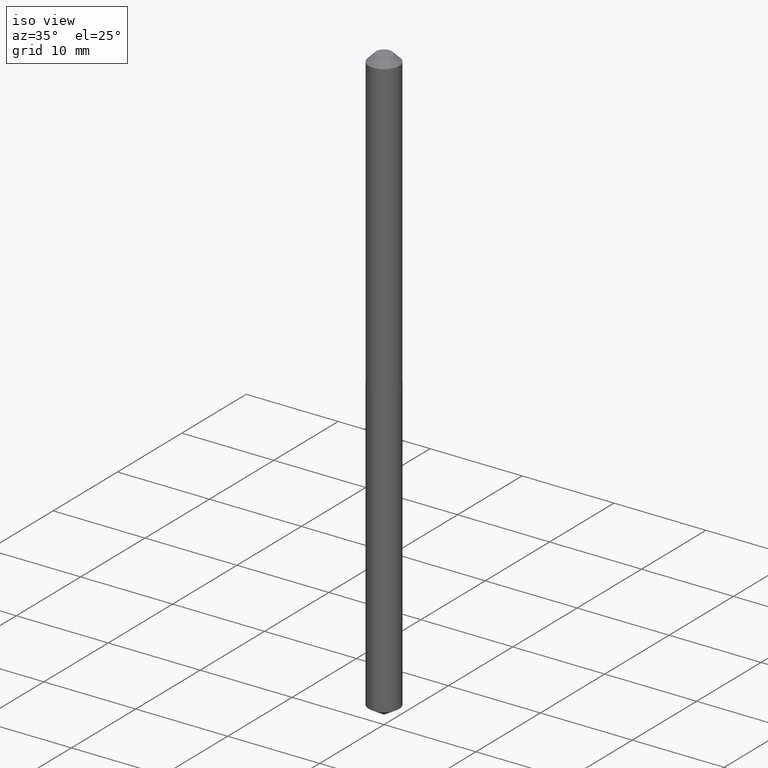
[diagram: clean part render]
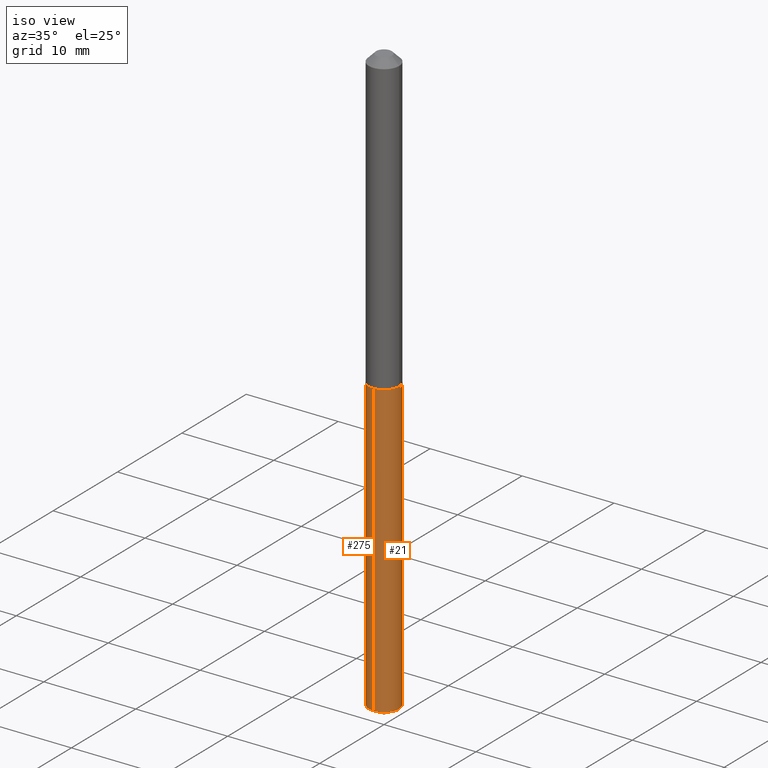
[diagram: same view with one multi-face feature highlighted, each face labeled with its STEP entity id]
A machine part, iso view. The highlighted faces form ONE feature: a constant-radius fillet chain: 2 tangent blend faces with common blend radius 1.6497 mm. The faces share edges in the B-rep.
Their STEP definitions:
[1] entity #275 (Cylinder):
#9 = DIRECTION ( 'NONE',  ( -6.982962677686266711E-15, -1.000000000000000000, 0.000000000000000000 ) ) ;
#10 = CIRCLE ( 'NONE', #352, 0.06494999999999999385 ) ;
#14 = CARTESIAN_POINT ( 'NONE',  ( 4.614975068762469526E-16, 0.06494999999999556684, -1.271700000000000275 ) ) ;
#22 = DIRECTION ( 'NONE',  ( -2.445570832791606508E-29, 3.491335230935686971E-15, 1.000000000000000000 ) ) ;
#29 = VERTEX_POINT ( 'NONE', #61 ) ;
#61 = CARTESIAN_POINT ( 'NONE',  ( -4.535434259156918360E-16, -0.06495000000000443474, -1.271699999999999608 ) ) ;
#71 = ORIENTED_EDGE ( 'NONE', *, *, #131, .T. ) ;
#72 = CARTESIAN_POINT ( 'NONE',  ( -4.535434259156613663E-16, -0.06495000000000882012, -2.520074102794160442 ) ) ;
#78 = VERTEX_POINT ( 'NONE', #146 ) ;
#89 = EDGE_CURVE ( 'NONE', #78, #166, #176, .T. ) ;
#124 = VERTEX_POINT ( 'NONE', #72 ) ;
#128 = DIRECTION ( 'NONE',  ( -2.445570832791606508E-29, 3.491335230935686971E-15, 1.000000000000000000 ) ) ;
#131 = EDGE_CURVE ( 'NONE', #78, #124, #308, .T. ) ;
#146 = CARTESIAN_POINT ( 'NONE',  ( 4.614975068762467554E-16, 0.06494999999999120921, -2.520074102794160442 ) ) ;
#164 = FACE_OUTER_BOUND ( 'NONE', #214, .T. ) ;
#165 = CYLINDRICAL_SURFACE ( 'NONE', #316, 0.06494999999999999385 ) ;
#166 = VERTEX_POINT ( 'NONE', #14 ) ;
#175 = AXIS2_PLACEMENT_3D ( 'NONE', #343, #128, #9 ) ;
#176 = LINE ( 'NONE', #183, #189 ) ;
#178 = DIRECTION ( 'NONE',  ( -2.445570832791606508E-29, 3.491335230935686576E-15, 1.000000000000000000 ) ) ;
#183 = CARTESIAN_POINT ( 'NONE',  ( 4.614975068762160884E-16, 0.06494999999999555296, -1.271700000000000275 ) ) ;
#185 = EDGE_CURVE ( 'NONE', #166, #29, #10, .T. ) ;
#189 = VECTOR ( 'NONE', #178, 39.37007874015748143 ) ;
#209 = EDGE_CURVE ( 'NONE', #124, #29, #314, .T. ) ;
#214 = EDGE_LOOP ( 'NONE', ( #384, #71, #325, #345 ) ) ;
#229 = DIRECTION ( 'NONE',  ( -6.982962677686266711E-15, -1.000000000000000000, 4.206078512185163024E-15 ) ) ;
#245 = DIRECTION ( 'NONE',  ( -6.982962677686266711E-15, -1.000000000000000000, 4.206078512185163024E-15 ) ) ;
#275 = ADVANCED_FACE ( 'NONE', ( #164 ), #165, .T. ) ;
#285 = CARTESIAN_POINT ( 'NONE',  ( 3.109902680825638129E-29, -4.440116818606828093E-15, -1.271700000000000053 ) ) ;
#307 = CARTESIAN_POINT ( 'NONE',  ( -4.535434259156918360E-16, -0.06495000000000443474, -1.271699999999999608 ) ) ;
#308 = CIRCLE ( 'NONE', #175, 0.06494999999999999385 ) ;
#314 = LINE ( 'NONE', #307, #386 ) ;
#316 = AXIS2_PLACEMENT_3D ( 'NONE', #285, #22, #229 ) ;
#325 = ORIENTED_EDGE ( 'NONE', *, *, #209, .T. ) ;
#340 = DIRECTION ( 'NONE',  ( -2.445570832791606508E-29, 3.491335230935686576E-15, 1.000000000000000000 ) ) ;
#343 = CARTESIAN_POINT ( 'NONE',  ( 6.162889975031427780E-29, -8.798609305079810371E-15, -2.520074102794160442 ) ) ;
#345 = ORIENTED_EDGE ( 'NONE', *, *, #185, .F. ) ;
#352 = AXIS2_PLACEMENT_3D ( 'NONE', #368, #370, #245 ) ;
#368 = CARTESIAN_POINT ( 'NONE',  ( 3.109902680825638129E-29, -4.440116818606828093E-15, -1.271700000000000053 ) ) ;
#370 = DIRECTION ( 'NONE',  ( -2.445570832791606508E-29, 3.491335230935686971E-15, 1.000000000000000000 ) ) ;
#384 = ORIENTED_EDGE ( 'NONE', *, *, #89, .F. ) ;
#386 = VECTOR ( 'NONE', #340, 39.37007874015748143 ) ;
[2] entity #21 (Cylinder):
#5 = AXIS2_PLACEMENT_3D ( 'NONE', #338, #66, #50 ) ;
#7 = CARTESIAN_POINT ( 'NONE',  ( 3.109902680825638129E-29, -4.440116818606828093E-15, -1.271700000000000053 ) ) ;
#8 = DIRECTION ( 'NONE',  ( -2.445570832791606508E-29, 3.491335230935686971E-15, 1.000000000000000000 ) ) ;
#14 = CARTESIAN_POINT ( 'NONE',  ( 4.614975068762469526E-16, 0.06494999999999556684, -1.271700000000000275 ) ) ;
#21 = ADVANCED_FACE ( 'NONE', ( #116 ), #152, .T. ) ;
#29 = VERTEX_POINT ( 'NONE', #61 ) ;
#32 = CARTESIAN_POINT ( 'NONE',  ( 3.109902680825638129E-29, -4.440116818606828093E-15, -1.271700000000000053 ) ) ;
#50 = DIRECTION ( 'NONE',  ( -6.982962677686266711E-15, -1.000000000000000000, 0.000000000000000000 ) ) ;
#61 = CARTESIAN_POINT ( 'NONE',  ( -4.535434259156918360E-16, -0.06495000000000443474, -1.271699999999999608 ) ) ;
#66 = DIRECTION ( 'NONE',  ( -2.445570832791606508E-29, 3.491335230935686971E-15, 1.000000000000000000 ) ) ;
#68 = AXIS2_PLACEMENT_3D ( 'NONE', #32, #360, #236 ) ;
#72 = CARTESIAN_POINT ( 'NONE',  ( -4.535434259156613663E-16, -0.06495000000000882012, -2.520074102794160442 ) ) ;
#78 = VERTEX_POINT ( 'NONE', #146 ) ;
#89 = EDGE_CURVE ( 'NONE', #78, #166, #176, .T. ) ;
#111 = CIRCLE ( 'NONE', #138, 0.06494999999999999385 ) ;
#115 = EDGE_CURVE ( 'NONE', #29, #166, #111, .T. ) ;
#116 = FACE_OUTER_BOUND ( 'NONE', #202, .T. ) ;
#124 = VERTEX_POINT ( 'NONE', #72 ) ;
#138 = AXIS2_PLACEMENT_3D ( 'NONE', #7, #8, #280 ) ;
#146 = CARTESIAN_POINT ( 'NONE',  ( 4.614975068762467554E-16, 0.06494999999999120921, -2.520074102794160442 ) ) ;
#152 = CYLINDRICAL_SURFACE ( 'NONE', #68, 0.06494999999999999385 ) ;
#166 = VERTEX_POINT ( 'NONE', #14 ) ;
#176 = LINE ( 'NONE', #183, #189 ) ;
#178 = DIRECTION ( 'NONE',  ( -2.445570832791606508E-29, 3.491335230935686576E-15, 1.000000000000000000 ) ) ;
#183 = CARTESIAN_POINT ( 'NONE',  ( 4.614975068762160884E-16, 0.06494999999999555296, -1.271700000000000275 ) ) ;
#189 = VECTOR ( 'NONE', #178, 39.37007874015748143 ) ;
#202 = EDGE_LOOP ( 'NONE', ( #270, #389, #357, #390 ) ) ;
#209 = EDGE_CURVE ( 'NONE', #124, #29, #314, .T. ) ;
#236 = DIRECTION ( 'NONE',  ( -6.982962677686266711E-15, -1.000000000000000000, 4.206078512185163024E-15 ) ) ;
#261 = EDGE_CURVE ( 'NONE', #124, #78, #350, .T. ) ;
#270 = ORIENTED_EDGE ( 'NONE', *, *, #261, .T. ) ;
#280 = DIRECTION ( 'NONE',  ( -6.982962677686266711E-15, -1.000000000000000000, 4.206078512185163024E-15 ) ) ;
#307 = CARTESIAN_POINT ( 'NONE',  ( -4.535434259156918360E-16, -0.06495000000000443474, -1.271699999999999608 ) ) ;
#314 = LINE ( 'NONE', #307, #386 ) ;
#338 = CARTESIAN_POINT ( 'NONE',  ( 6.162889975031427780E-29, -8.798609305079810371E-15, -2.520074102794160442 ) ) ;
#340 = DIRECTION ( 'NONE',  ( -2.445570832791606508E-29, 3.491335230935686576E-15, 1.000000000000000000 ) ) ;
#350 = CIRCLE ( 'NONE', #5, 0.06494999999999999385 ) ;
#357 = ORIENTED_EDGE ( 'NONE', *, *, #115, .F. ) ;
#360 = DIRECTION ( 'NONE',  ( -2.445570832791606508E-29, 3.491335230935686971E-15, 1.000000000000000000 ) ) ;
#386 = VECTOR ( 'NONE', #340, 39.37007874015748143 ) ;
#389 = ORIENTED_EDGE ( 'NONE', *, *, #89, .T. ) ;
#390 = ORIENTED_EDGE ( 'NONE', *, *, #209, .F. ) ;